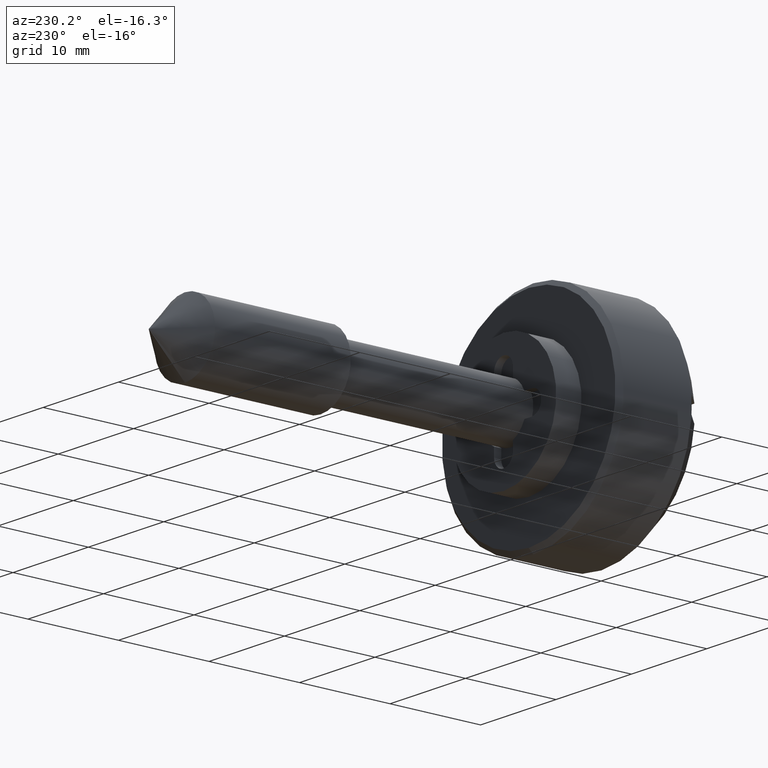
[diagram: clean part render]
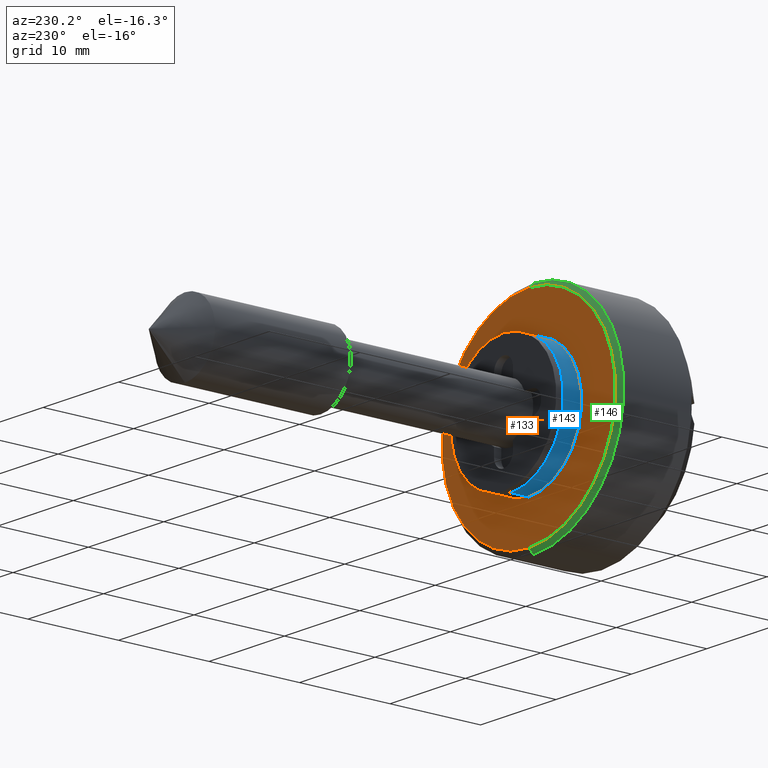
[diagram: same view with three faces highlighted in distinct colors, each labeled with its STEP entity id]
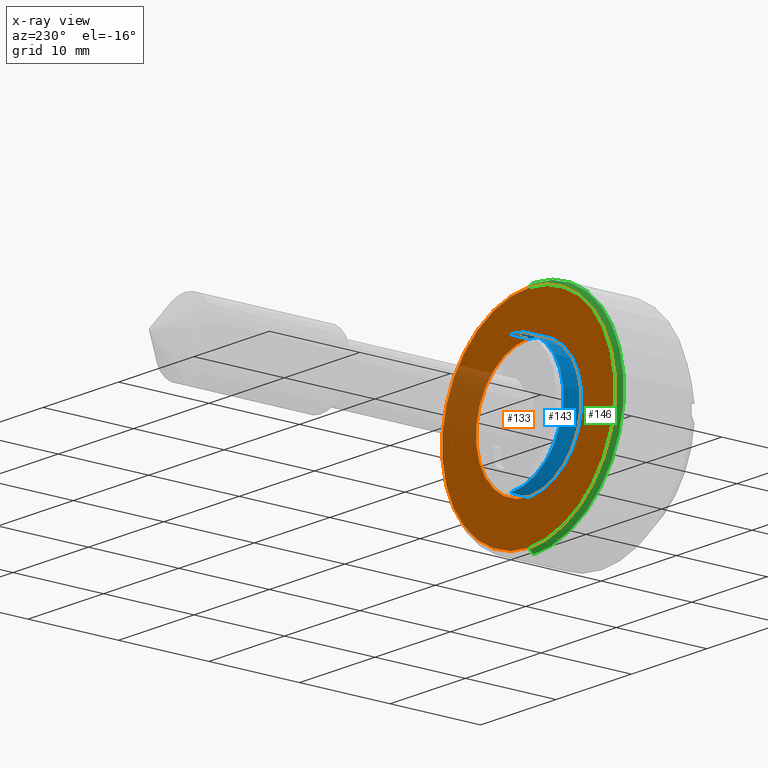
[diagram: x-ray of the same camera — body ghosted, the three highlighted faces saturated]
A machine part, auxiliary view with three faces highlighted in distinct colors.
The next image is the same camera in x-ray (body ghosted, the three faces saturated) — at least one of them is partly hidden behind the body in this view.
Their STEP definitions:

[orange] entity #133 — the highlighted planar face has unit normal (0, 1, 0).
#133=ADVANCED_FACE('',(#368,#369),#367,.T.);
#367=PLANE('',#690);
#368=FACE_OUTER_BOUND('',#691,.T.);
#369=FACE_BOUND('',#692,.T.);
#687=CARTESIAN_POINT('',(-2.00000000000E+00,-2.39023011445E+01,-1.49500000000E+01));
#688=DIRECTION('',(1.00000000000E+00,0.00000000000E+00,0.00000000000E+00));
#689=DIRECTION('',(0.00000000000E+00,1.00000000000E+00,0.00000000000E+00));
#690=AXIS2_PLACEMENT_3D('',#687,#688,#689);
#691=EDGE_LOOP('',(#942,#943));
#692=EDGE_LOOP('',(#944,#945));
#942=ORIENTED_EDGE('',*,*,#1088,.T.);
#943=ORIENTED_EDGE('',*,*,#1089,.T.);
#944=ORIENTED_EDGE('',*,*,#1090,.T.);
#945=ORIENTED_EDGE('',*,*,#1091,.T.);
#1088=EDGE_CURVE('',#1518,#1519,#1520,.T.);
#1089=EDGE_CURVE('',#1519,#1518,#1526,.T.);
#1090=EDGE_CURVE('',#1532,#1533,#1534,.T.);
#1091=EDGE_CURVE('',#1533,#1532,#1540,.T.);
#1518=VERTEX_POINT('',#2031);
#1519=VERTEX_POINT('',#2032);
#1520=CIRCLE('',#2036,1.15000000000E+01);
#1526=CIRCLE('',#2040,1.15000000000E+01);
#1532=VERTEX_POINT('',#2041);
#1533=VERTEX_POINT('',#2042);
#1534=CIRCLE('',#2046,7.00000000000E+00);
#1540=CIRCLE('',#2050,7.00000000000E+00);
#2031=CARTESIAN_POINT('',(-2.00000000000E+00,0.00000000000E+00,-1.15000000000E+01));
#2032=CARTESIAN_POINT('',(-2.00000000000E+00,5.92118946467E-16,1.15000000000E+01));
#2033=CARTESIAN_POINT('',(-2.00000000000E+00,0.00000000000E+00,0.00000000000E+00));
#2034=DIRECTION('',(1.00000000000E+00,0.00000000000E+00,0.00000000000E+00));
#2035=DIRECTION('',(0.00000000000E+00,-1.22460635382E-16,-1.00000000000E+00));
#2036=AXIS2_PLACEMENT_3D('',#2033,#2034,#2035);
#2037=CARTESIAN_POINT('',(-2.00000000000E+00,0.00000000000E+00,0.00000000000E+00));
#2038=DIRECTION('',(1.00000000000E+00,0.00000000000E+00,0.00000000000E+00));
#2039=DIRECTION('',(0.00000000000E+00,-1.22460635382E-16,-1.00000000000E+00));
#2040=AXIS2_PLACEMENT_3D('',#2037,#2038,#2039);
#2041=CARTESIAN_POINT('',(-2.00000000000E+00,0.00000000000E+00,-7.00000000000E+00));
#2042=CARTESIAN_POINT('',(-2.00000000000E+00,8.88178419700E-16,7.00000000000E+00));
#2043=CARTESIAN_POINT('',(-2.00000000000E+00,0.00000000000E+00,0.00000000000E+00));
#2044=DIRECTION('',(-1.00000000000E+00,0.00000000000E+00,-0.00000000000E+00));
#2045=DIRECTION('',(0.00000000000E+00,-1.22460635382E-16,-1.00000000000E+00));
#2046=AXIS2_PLACEMENT_3D('',#2043,#2044,#2045);
#2047=CARTESIAN_POINT('',(-2.00000000000E+00,0.00000000000E+00,0.00000000000E+00));
#2048=DIRECTION('',(-1.00000000000E+00,0.00000000000E+00,-0.00000000000E+00));
#2049=DIRECTION('',(0.00000000000E+00,-1.22460635382E-16,-1.00000000000E+00));
#2050=AXIS2_PLACEMENT_3D('',#2047,#2048,#2049);

[blue] entity #143 — the highlighted cylindrical surface (partial cylindrical patch) has radius 7 mm, axis along (0, -1, -0).
#143=ADVANCED_FACE('',(#470),#469,.T.);
#469=CYLINDRICAL_SURFACE('',#742,7.00000000000E+00);
#470=FACE_OUTER_BOUND('',#743,.T.);
#739=CARTESIAN_POINT('',(-1.00000000000E+03,0.00000000000E+00,0.00000000000E+00));
#740=DIRECTION('',(-1.00000000000E+00,-0.00000000000E+00,-0.00000000000E+00));
#741=DIRECTION('',(0.00000000000E+00,1.22464679915E-16,-1.00000000000E+00));
#742=AXIS2_PLACEMENT_3D('',#739,#740,#741);
#743=EDGE_LOOP('',(#980,#981,#982,#983));
#980=ORIENTED_EDGE('',*,*,#1085,.F.);
#981=ORIENTED_EDGE('',*,*,#1116,.T.);
#982=ORIENTED_EDGE('',*,*,#1091,.F.);
#983=ORIENTED_EDGE('',*,*,#1117,.F.);
#1085=EDGE_CURVE('',#1491,#1490,#1498,.T.);
#1091=EDGE_CURVE('',#1533,#1532,#1540,.T.);
#1116=EDGE_CURVE('',#1491,#1532,#1708,.T.);
#1117=EDGE_CURVE('',#1490,#1533,#1714,.T.);
#1490=VERTEX_POINT('',#2011);
#1491=VERTEX_POINT('',#2012);
#1498=CIRCLE('',#2020,7.00000000000E+00);
#1532=VERTEX_POINT('',#2041);
#1533=VERTEX_POINT('',#2042);
#1540=CIRCLE('',#2050,7.00000000000E+00);
#1708=(BOUNDED_CURVE() B_SPLINE_CURVE(1,(#2157,#2158),.UNSPECIFIED.,.F.,.F.) B_SPLINE_CURVE_WITH_KNOTS((2,2),(8.33333134656E-02,9.16666653270E-01),.UNSPECIFIED.) CURVE() GEOMETRIC_REPRESENTATION_ITEM() RATIONAL_B_SPLINE_CURVE((1.00000000000E+00,1.00000000000E+00)) REPRESENTATION_ITEM('') );
#1714=(BOUNDED_CURVE() B_SPLINE_CURVE(1,(#2159,#2160),.UNSPECIFIED.,.F.,.F.) B_SPLINE_CURVE_WITH_KNOTS((2,2),(8.33333333333E-02,9.16666666667E-01),.UNSPECIFIED.) CURVE() GEOMETRIC_REPRESENTATION_ITEM() RATIONAL_B_SPLINE_CURVE((7.50000000000E-01,7.50000000000E-01)) REPRESENTATION_ITEM('') );
#2011=CARTESIAN_POINT('',(0.00000000000E+00,0.00000000000E+00,7.00000000000E+00));
#2012=CARTESIAN_POINT('',(0.00000000000E+00,8.88178419700E-16,-7.00000000000E+00));
#2017=CARTESIAN_POINT('',(0.00000000000E+00,0.00000000000E+00,0.00000000000E+00));
#2018=DIRECTION('',(1.00000000000E+00,0.00000000000E+00,-0.00000000000E+00));
#2019=DIRECTION('',(0.00000000000E+00,-1.22460635382E-16,1.00000000000E+00));
#2020=AXIS2_PLACEMENT_3D('',#2017,#2018,#2019);
#2041=CARTESIAN_POINT('',(-2.00000000000E+00,0.00000000000E+00,-7.00000000000E+00));
#2042=CARTESIAN_POINT('',(-2.00000000000E+00,8.88178419700E-16,7.00000000000E+00));
#2047=CARTESIAN_POINT('',(-2.00000000000E+00,0.00000000000E+00,0.00000000000E+00));
#2048=DIRECTION('',(-1.00000000000E+00,0.00000000000E+00,-0.00000000000E+00));
#2049=DIRECTION('',(0.00000000000E+00,-1.22460635382E-16,-1.00000000000E+00));
#2050=AXIS2_PLACEMENT_3D('',#2047,#2048,#2049);
#2157=CARTESIAN_POINT('',(4.76825537110E-08,8.57252759403E-16,-7.00000000000E+00));
#2158=CARTESIAN_POINT('',(-1.99999996785E+00,8.57252759403E-16,-7.00000000000E+00));
#2159=CARTESIAN_POINT('',(3.70074341542E-17,-5.92118946467E-16,7.00000000000E+00));
#2160=CARTESIAN_POINT('',(-2.00000000000E+00,-5.92118946467E-16,7.00000000000E+00));

[green] entity #146 — the highlighted face is a freeform B-spline surface patch.
#146=ADVANCED_FACE('',(#500),#499,.T.);
#499=( BOUNDED_SURFACE() B_SPLINE_SURFACE( 2,1,((#754,#755),(#756,#757),(#758,#759),(#760,#761),(#762,#763)), .UNSPECIFIED.,.F.,.F.,.F.) B_SPLINE_SURFACE_WITH_KNOTS((3,2,3),(2,2),(0.00000000000E+00,5.00000000000E-01,1.00000000000E+00),(0.00000000000E+00,1.00000000000E+00), .UNSPECIFIED. ) GEOMETRIC_REPRESENTATION_ITEM() RATIONAL_B_SPLINE_SURFACE(((1.00000000000E+00,1.00000000000E+00),(7.07106781187E-01,7.07106781187E-01),(1.00000000000E+00,1.00000000000E+00),(7.07106781187E-01,7.07106781187E-01),(1.00000000000E+00,1.00000000000E+00))) REPRESENTATION_ITEM('') SURFACE() );
#500=FACE_OUTER_BOUND('',#764,.T.);
#754=CARTESIAN_POINT('',(9.50000000000E+00,0.00000000000E+00,0.00000000000E+00));
#755=CARTESIAN_POINT('',(-7.47056274848E+00,-8.83800399847E-15,1.69705627485E+01));
#756=CARTESIAN_POINT('',(9.50000000000E+00,0.00000000000E+00,0.00000000000E+00));
#757=CARTESIAN_POINT('',(-7.47056274848E+00,1.69705627485E+01,1.69705627485E+01));
#758=CARTESIAN_POINT('',(9.50000000000E+00,0.00000000000E+00,0.00000000000E+00));
#759=CARTESIAN_POINT('',(-7.47056274848E+00,1.69705627485E+01,9.87715126595E-15));
#760=CARTESIAN_POINT('',(9.50000000000E+00,0.00000000000E+00,0.00000000000E+00));
#761=CARTESIAN_POINT('',(-7.47056274848E+00,1.69705627485E+01,-1.69705627485E+01));
#762=CARTESIAN_POINT('',(9.50000000000E+00,0.00000000000E+00,0.00000000000E+00));
#763=CARTESIAN_POINT('',(-7.47056274848E+00,1.09162985334E-14,-1.69705627485E+01));
#764=EDGE_LOOP('',(#992,#993,#994,#995));
#992=ORIENTED_EDGE('',*,*,#1112,.F.);
#993=ORIENTED_EDGE('',*,*,#1120,.F.);
#994=ORIENTED_EDGE('',*,*,#1088,.F.);
#995=ORIENTED_EDGE('',*,*,#1121,.T.);
#1088=EDGE_CURVE('',#1518,#1519,#1520,.T.);
#1112=EDGE_CURVE('',#1676,#1683,#1684,.T.);
#1120=EDGE_CURVE('',#1519,#1676,#1732,.T.);
#1121=EDGE_CURVE('',#1518,#1683,#1738,.T.);
#1518=VERTEX_POINT('',#2031);
#1519=VERTEX_POINT('',#2032);
#1520=CIRCLE('',#2036,1.15000000000E+01);
#1676=VERTEX_POINT('',#2139);
#1683=VERTEX_POINT('',#2142);
#1684=CIRCLE('',#2146,1.20000000000E+01);
#1732=(BOUNDED_CURVE() B_SPLINE_CURVE(1,(#2165,#2166),.UNSPECIFIED.,.F.,.F.) B_SPLINE_CURVE_WITH_KNOTS((2,2),(6.77643997967E-01,7.07106781279E-01),.UNSPECIFIED.) CURVE() GEOMETRIC_REPRESENTATION_ITEM() RATIONAL_B_SPLINE_CURVE((1.00000000000E+00,1.00000000000E+00)) REPRESENTATION_ITEM('') );
#1738=(BOUNDED_CURVE() B_SPLINE_CURVE(1,(#2167,#2168),.UNSPECIFIED.,.F.,.F.) B_SPLINE_CURVE_WITH_KNOTS((2,2),(6.77643997975E-01,7.07106780467E-01),.UNSPECIFIED.) CURVE() GEOMETRIC_REPRESENTATION_ITEM() RATIONAL_B_SPLINE_CURVE((7.50000000000E-01,7.50000000000E-01)) REPRESENTATION_ITEM('') );
#2031=CARTESIAN_POINT('',(-2.00000000000E+00,0.00000000000E+00,-1.15000000000E+01));
#2032=CARTESIAN_POINT('',(-2.00000000000E+00,5.92118946467E-16,1.15000000000E+01));
#2033=CARTESIAN_POINT('',(-2.00000000000E+00,0.00000000000E+00,0.00000000000E+00));
#2034=DIRECTION('',(1.00000000000E+00,0.00000000000E+00,0.00000000000E+00));
#2035=DIRECTION('',(0.00000000000E+00,-1.22460635382E-16,-1.00000000000E+00));
#2036=AXIS2_PLACEMENT_3D('',#2033,#2034,#2035);
#2139=CARTESIAN_POINT('',(-2.50000000000E+00,-4.73695157173E-15,1.20000000000E+01));
#2142=CARTESIAN_POINT('',(-2.50000000000E+00,0.00000000000E+00,-1.20000000000E+01));
#2143=CARTESIAN_POINT('',(-2.50000000000E+00,0.00000000000E+00,0.00000000000E+00));
#2144=DIRECTION('',(-1.00000000000E+00,0.00000000000E+00,-0.00000000000E+00));
#2145=DIRECTION('',(0.00000000000E+00,-1.22460635382E-16,-1.00000000000E+00));
#2146=AXIS2_PLACEMENT_3D('',#2143,#2144,#2145);
#2165=CARTESIAN_POINT('',(-1.99999998862E+00,-5.98902036357E-15,1.14999999886E+01));
#2166=CARTESIAN_POINT('',(-2.50000000157E+00,-6.24941256029E-15,1.20000000016E+01));
#2167=CARTESIAN_POINT('',(-1.99999998876E+00,4.81495020193E-15,-1.14999999888E+01));
#2168=CARTESIAN_POINT('',(-2.49999998779E+00,5.02429586268E-15,-1.19999999878E+01));